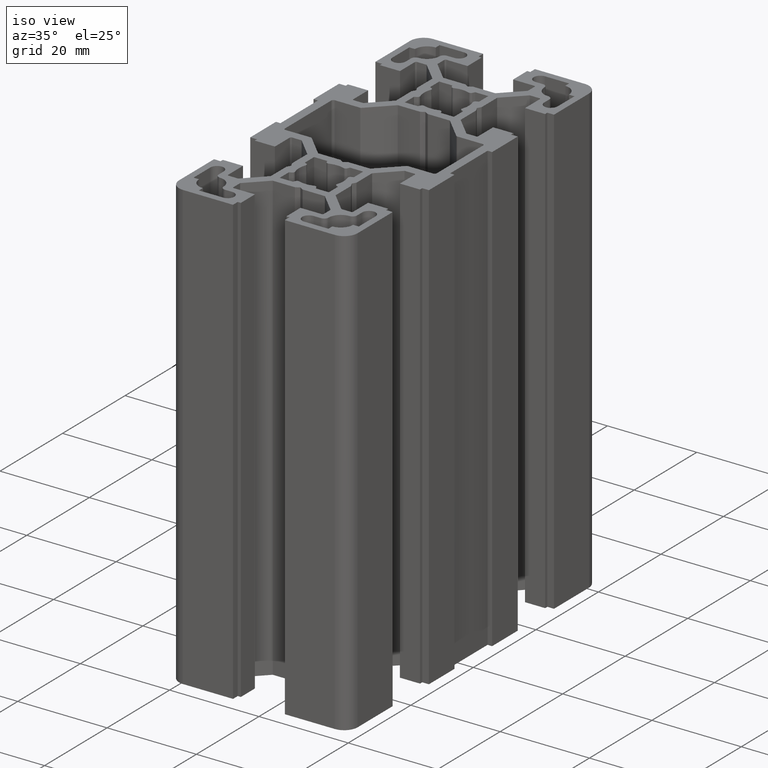
[diagram: clean part render]
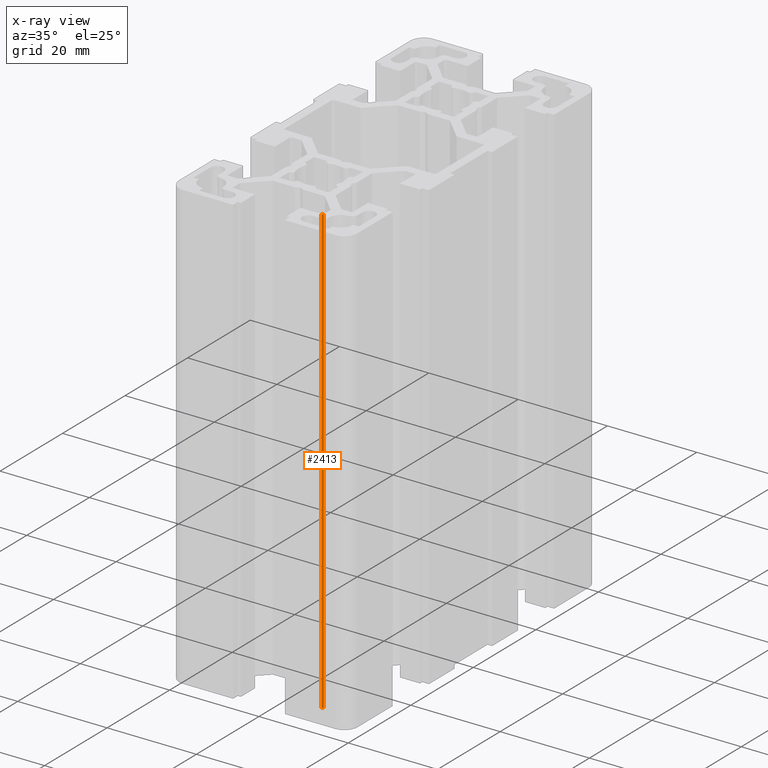
[diagram: x-ray — body ghosted, one internal face saturated and labeled with its STEP entity id]
A machine part, iso view, then the same camera in x-ray: the body is ghosted and one INTERNAL B-rep face — a face not visible from any outside direction — is saturated and labeled: STEP entity #2413.
In plain terms, the highlighted cylindrical surface (edge-blend (fillet) strip) has radius 0.3 mm, axis along (-0, -0, -1).
Its self-contained STEP definition (entity closure, byte-faithful):
#1558 = VERTEX_POINT ( 'NONE', #5828 ) ;
#1580 = VERTEX_POINT ( 'NONE', #5907 ) ;
#1624 = EDGE_CURVE ( 'NONE', #1580, #1558, #5949, .T. ) ;
#2411 = EDGE_CURVE ( 'NONE', #3008, #1558, #7241, .T. ) ;
#2412 = ORIENTED_EDGE ( 'NONE', *, *, #2411, .F. ) ;
#2413 = ADVANCED_FACE ( 'NONE', ( #7282 ), #7252, .F. ) ;
#2414 = ORIENTED_EDGE ( 'NONE', *, *, #1624, .T. ) ;
#2416 = ORIENTED_EDGE ( 'NONE', *, *, #2428, .T. ) ;
#2417 = ORIENTED_EDGE ( 'NONE', *, *, #2999, .F. ) ;
#2428 = EDGE_CURVE ( 'NONE', #2936, #1580, #7265, .T. ) ;
#2431 = EDGE_LOOP ( 'NONE', ( #2414, #2412, #2417, #2416 ) ) ;
#2936 = VERTEX_POINT ( 'NONE', #8069 ) ;
#2999 = EDGE_CURVE ( 'NONE', #2936, #3008, #8180, .T. ) ;
#3008 = VERTEX_POINT ( 'NONE', #8175 ) ;
#5828 = CARTESIAN_POINT ( 'NONE',  ( 9.825017241595329400, -33.99999501768132100, 0.0000000000000000000 ) ) ;
#5907 = CARTESIAN_POINT ( 'NONE',  ( 10.12501708946356000, -33.69999486554962700, 0.0000000000000000000 ) ) ;
#5949 = CIRCLE ( 'NONE', #5968, 0.2999999999999999300 ) ;
#5968 = AXIS2_PLACEMENT_3D ( 'NONE', #5970, #5994, #5993 ) ;
#5970 = CARTESIAN_POINT ( 'NONE',  ( 9.825017089463598200, -33.69999501768136000, 0.0000000000000000000 ) ) ;
#5993 = DIRECTION ( 'NONE',  ( 1.000000000000000000, 0.0000000000000000000, 0.0000000000000000000 ) ) ;
#5994 = DIRECTION ( 'NONE',  ( -0.0000000000000000000, -0.0000000000000000000, -1.000000000000000000 ) ) ;
#7236 = DIRECTION ( 'NONE',  ( -0.0000000000000000000, -0.0000000000000000000, -1.000000000000000000 ) ) ;
#7237 = VECTOR ( 'NONE', #7236, 1000.000000000000000 ) ;
#7241 = LINE ( 'NONE', #7245, #7237 ) ;
#7245 = CARTESIAN_POINT ( 'NONE',  ( 9.825017241595329400, -33.99999501768132100, 100.0000000000000000 ) ) ;
#7252 = CYLINDRICAL_SURFACE ( 'NONE', #7281, 0.2999999999999999300 ) ;
#7265 = LINE ( 'NONE', #7315, #7314 ) ;
#7277 = DIRECTION ( 'NONE',  ( -1.000000000000000000, 0.0000000000000000000, 0.0000000000000000000 ) ) ;
#7278 = DIRECTION ( 'NONE',  ( -0.0000000000000000000, -0.0000000000000000000, -1.000000000000000000 ) ) ;
#7279 = CARTESIAN_POINT ( 'NONE',  ( 9.825017089463598200, -33.69999501768136000, 100.0000000000000000 ) ) ;
#7281 = AXIS2_PLACEMENT_3D ( 'NONE', #7279, #7278, #7277 ) ;
#7282 = FACE_OUTER_BOUND ( 'NONE', #2431, .T. ) ;
#7313 = DIRECTION ( 'NONE',  ( -0.0000000000000000000, -0.0000000000000000000, -1.000000000000000000 ) ) ;
#7314 = VECTOR ( 'NONE', #7313, 1000.000000000000000 ) ;
#7315 = CARTESIAN_POINT ( 'NONE',  ( 10.12501708946356000, -33.69999486554962700, 100.0000000000000000 ) ) ;
#8069 = CARTESIAN_POINT ( 'NONE',  ( 10.12501708946356000, -33.69999486554962700, 100.0000000000000000 ) ) ;
#8171 = DIRECTION ( 'NONE',  ( 1.000000000000000000, 0.0000000000000000000, 0.0000000000000000000 ) ) ;
#8172 = DIRECTION ( 'NONE',  ( -0.0000000000000000000, -0.0000000000000000000, -1.000000000000000000 ) ) ;
#8173 = CARTESIAN_POINT ( 'NONE',  ( 9.825017089463598200, -33.69999501768136000, 100.0000000000000000 ) ) ;
#8174 = AXIS2_PLACEMENT_3D ( 'NONE', #8173, #8172, #8171 ) ;
#8175 = CARTESIAN_POINT ( 'NONE',  ( 9.825017241595329400, -33.99999501768132100, 100.0000000000000000 ) ) ;
#8180 = CIRCLE ( 'NONE', #8174, 0.2999999999999999300 ) ;